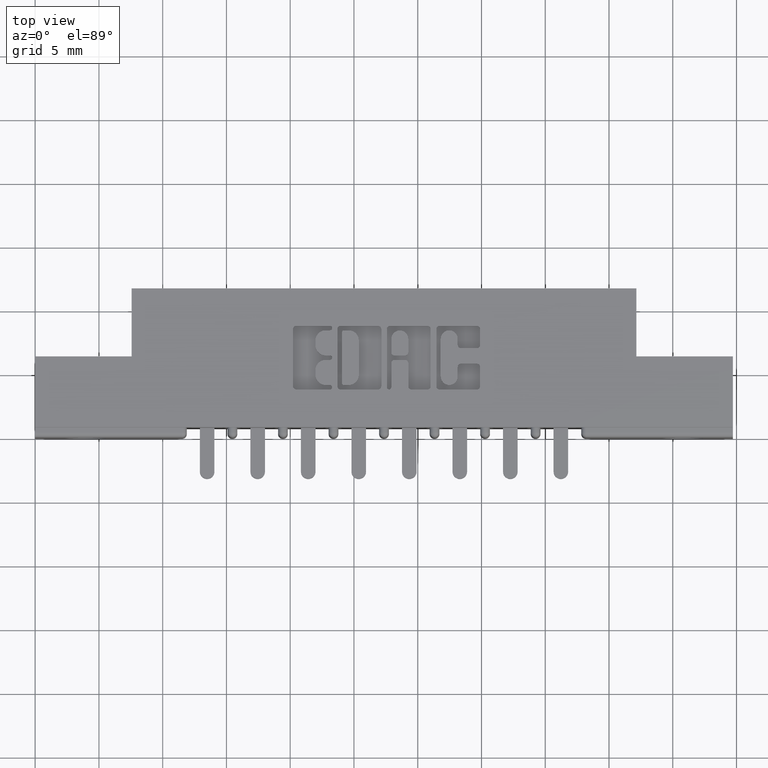
[diagram: clean part render]
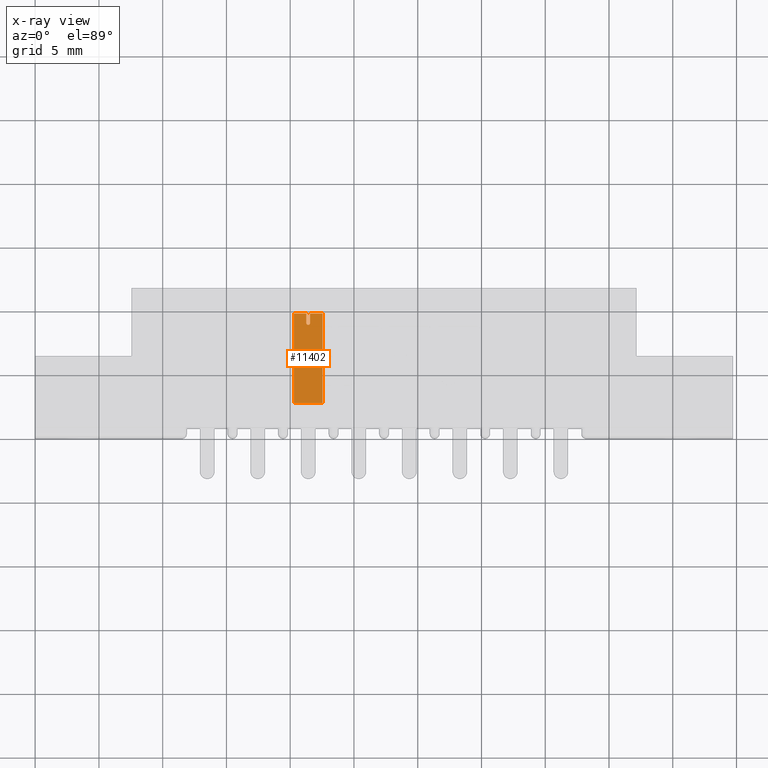
[diagram: x-ray — body ghosted, one internal face saturated and labeled with its STEP entity id]
A machine part, top view, then the same camera in x-ray: the body is ghosted and one INTERNAL B-rep face — a face not visible from any outside direction — is saturated and labeled: STEP entity #11402.
In plain terms, the highlighted planar face has unit normal (-0, -0, 1).
Its self-contained STEP definition (entity closure, byte-faithful):
#12 = EDGE_CURVE ( 'NONE', #10897, #2954, #3139, .T. ) ;
#66 = CARTESIAN_POINT ( 'NONE',  ( 0.04449999999999893600, 0.2770000000001781000, -0.03299999999987159700 ) ) ;
#250 = CARTESIAN_POINT ( 'NONE',  ( 0.04449999999999893600, 5.747125216671194000E-014, -0.03299999999987159700 ) ) ;
#461 = VECTOR ( 'NONE', #5168, 39.37007874015748100 ) ;
#499 = CARTESIAN_POINT ( 'NONE',  ( 0.04449999999999893600, 0.2770000000001781000, -0.03299999999987159700 ) ) ;
#688 = VERTEX_POINT ( 'NONE', #3930 ) ;
#1202 = VERTEX_POINT ( 'NONE', #3234 ) ;
#1232 = CARTESIAN_POINT ( 'NONE',  ( -0.04449999999997817500, 0.2770000000001342500, -0.03299999999987159700 ) ) ;
#1295 = EDGE_LOOP ( 'NONE', ( #6397, #2812, #3616, #7844, #9509, #11016, #2162, #5738 ) ) ;
#2040 = LINE ( 'NONE', #250, #2975 ) ;
#2162 = ORIENTED_EDGE ( 'NONE', *, *, #5434, .F. ) ;
#2812 = ORIENTED_EDGE ( 'NONE', *, *, #12, .T. ) ;
#2879 = LINE ( 'NONE', #5521, #11301 ) ;
#2886 = DIRECTION ( 'NONE',  ( -8.159779988379840900E-029, -1.000000000000000000, -1.232783390642718400E-016 ) ) ;
#2954 = VERTEX_POINT ( 'NONE', #4307 ) ;
#2975 = VECTOR ( 'NONE', #9074, 39.37007874015748100 ) ;
#3139 = LINE ( 'NONE', #10017, #10657 ) ;
#3194 = AXIS2_PLACEMENT_3D ( 'NONE', #3871, #4677, #4755 ) ;
#3234 = CARTESIAN_POINT ( 'NONE',  ( 0.04449999999999893600, 0.2770000000001781000, -0.03299999999987159700 ) ) ;
#3382 = EDGE_CURVE ( 'NONE', #1202, #2954, #4348, .T. ) ;
#3616 = ORIENTED_EDGE ( 'NONE', *, *, #3382, .F. ) ;
#3871 = CARTESIAN_POINT ( 'NONE',  ( 0.0000000000000000000, 0.2480000000001575900, -0.03299999999987159700 ) ) ;
#3930 = CARTESIAN_POINT ( 'NONE',  ( -0.04450000000000003300, 2.052300805240277900E-014, -0.03299999999987159700 ) ) ;
#3997 = CARTESIAN_POINT ( 'NONE',  ( 0.04449999999999893600, 5.747125216671194000E-014, -0.03299999999987159700 ) ) ;
#4044 = DIRECTION ( 'NONE',  ( 8.159779988379840900E-029, 1.000000000000000000, 1.232783390642718100E-016 ) ) ;
#4303 = LINE ( 'NONE', #499, #9727 ) ;
#4307 = CARTESIAN_POINT ( 'NONE',  ( 0.005999999999999881300, 0.2770000000001576200, -0.03299999999987159700 ) ) ;
#4348 = LINE ( 'NONE', #66, #10063 ) ;
#4595 = CARTESIAN_POINT ( 'NONE',  ( 0.04449999999999893600, 0.2770000000001781000, -0.03299999999987159700 ) ) ;
#4677 = DIRECTION ( 'NONE',  ( 9.059261147445614600E-045, 1.232783390642718400E-016, -1.000000000000000000 ) ) ;
#4728 = CARTESIAN_POINT ( 'NONE',  ( -0.005999999999999881300, 0.2480000000001575900, -0.03299999999987159700 ) ) ;
#4755 = DIRECTION ( 'NONE',  ( -8.159779988379855400E-029, -1.000000000000000000, 0.0000000000000000000 ) ) ;
#5121 = DIRECTION ( 'NONE',  ( 8.159779988379840900E-029, 1.000000000000000000, 1.219574997171547200E-015 ) ) ;
#5168 = DIRECTION ( 'NONE',  ( 8.159779988379840900E-029, 1.000000000000000000, 1.232783390642718100E-016 ) ) ;
#5434 = EDGE_CURVE ( 'NONE', #10502, #8191, #4303, .T. ) ;
#5521 = CARTESIAN_POINT ( 'NONE',  ( -0.005999999999999881300, 0.2420000000001575600, -0.03299999999987159700 ) ) ;
#5738 = ORIENTED_EDGE ( 'NONE', *, *, #12559, .F. ) ;
#5835 = LINE ( 'NONE', #1232, #461 ) ;
#5911 = CARTESIAN_POINT ( 'NONE',  ( 0.04449999999999893600, 0.2770000000001781000, -0.03299999999987159700 ) ) ;
#6232 = CARTESIAN_POINT ( 'NONE',  ( -0.005999999999999881300, 0.2770000000001576200, -0.03299999999987159700 ) ) ;
#6397 = ORIENTED_EDGE ( 'NONE', *, *, #7214, .F. ) ;
#6653 = LINE ( 'NONE', #5911, #10336 ) ;
#6691 = DIRECTION ( 'NONE',  ( -9.059261147445614600E-045, -1.232783390642718400E-016, 1.000000000000000000 ) ) ;
#7214 = EDGE_CURVE ( 'NONE', #10897, #7309, #8408, .T. ) ;
#7309 = VERTEX_POINT ( 'NONE', #4728 ) ;
#7390 = DIRECTION ( 'NONE',  ( -1.000000000000000000, -8.159779988379840900E-029, -3.478907351041940600E-046 ) ) ;
#7844 = ORIENTED_EDGE ( 'NONE', *, *, #9188, .F. ) ;
#7855 = CARTESIAN_POINT ( 'NONE',  ( -0.04449999999997817500, 0.2770000000001342500, -0.03299999999987159700 ) ) ;
#8191 = VERTEX_POINT ( 'NONE', #7855 ) ;
#8408 = CIRCLE ( 'NONE', #3194, 0.005999999999999983600 ) ;
#8437 = PLANE ( 'NONE',  #10526 ) ;
#9074 = DIRECTION ( 'NONE',  ( -1.000000000000000000, -8.159779988379840900E-029, -3.478907351041940600E-046 ) ) ;
#9188 = EDGE_CURVE ( 'NONE', #9861, #1202, #6653, .T. ) ;
#9245 = CARTESIAN_POINT ( 'NONE',  ( 0.005999999999999881300, 0.2480000000001575900, -0.03299999999987159700 ) ) ;
#9325 = EDGE_CURVE ( 'NONE', #9861, #688, #2040, .T. ) ;
#9509 = ORIENTED_EDGE ( 'NONE', *, *, #9325, .T. ) ;
#9727 = VECTOR ( 'NONE', #7390, 39.37007874015748100 ) ;
#9861 = VERTEX_POINT ( 'NONE', #3997 ) ;
#10017 = CARTESIAN_POINT ( 'NONE',  ( 0.005999999999999881300, 0.2420000000001575600, -0.03299999999987159700 ) ) ;
#10063 = VECTOR ( 'NONE', #10854, 39.37007874015748100 ) ;
#10336 = VECTOR ( 'NONE', #4044, 39.37007874015748100 ) ;
#10502 = VERTEX_POINT ( 'NONE', #6232 ) ;
#10526 = AXIS2_PLACEMENT_3D ( 'NONE', #4595, #6691, #2886 ) ;
#10657 = VECTOR ( 'NONE', #5121, 39.37007874015748100 ) ;
#10854 = DIRECTION ( 'NONE',  ( -1.000000000000000000, -8.159779988379840900E-029, -3.478907351041940600E-046 ) ) ;
#10897 = VERTEX_POINT ( 'NONE', #9245 ) ;
#11016 = ORIENTED_EDGE ( 'NONE', *, *, #12070, .T. ) ;
#11040 = FACE_OUTER_BOUND ( 'NONE', #1295, .T. ) ;
#11301 = VECTOR ( 'NONE', #12374, 39.37007874015748100 ) ;
#11402 = ADVANCED_FACE ( 'NONE', ( #11040 ), #8437, .F. ) ;
#12070 = EDGE_CURVE ( 'NONE', #688, #8191, #5835, .T. ) ;
#12374 = DIRECTION ( 'NONE',  ( 8.159779988379840900E-029, 1.000000000000000000, 1.219574997171547200E-015 ) ) ;
#12559 = EDGE_CURVE ( 'NONE', #7309, #10502, #2879, .T. ) ;